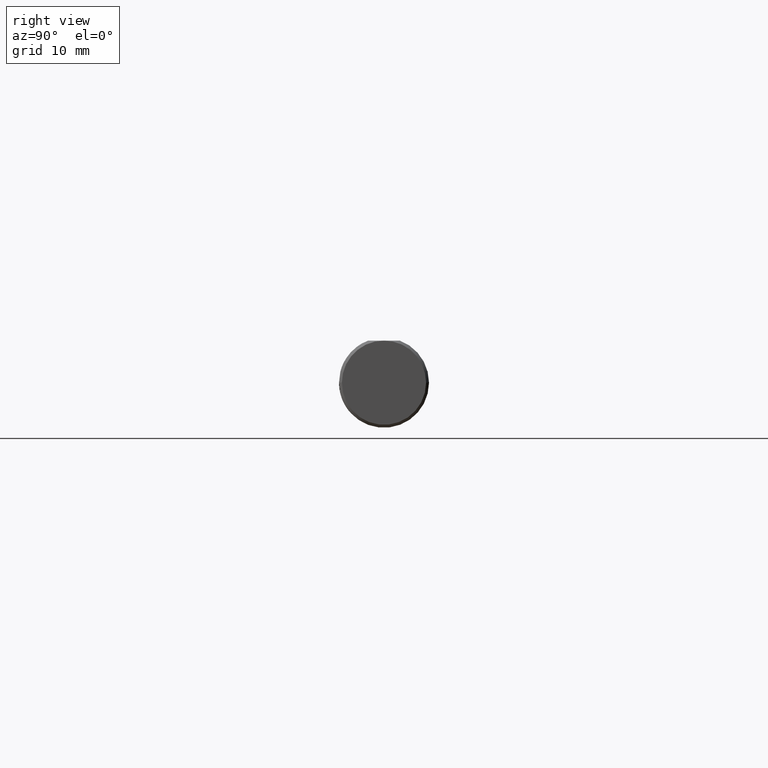
[diagram: clean part render]
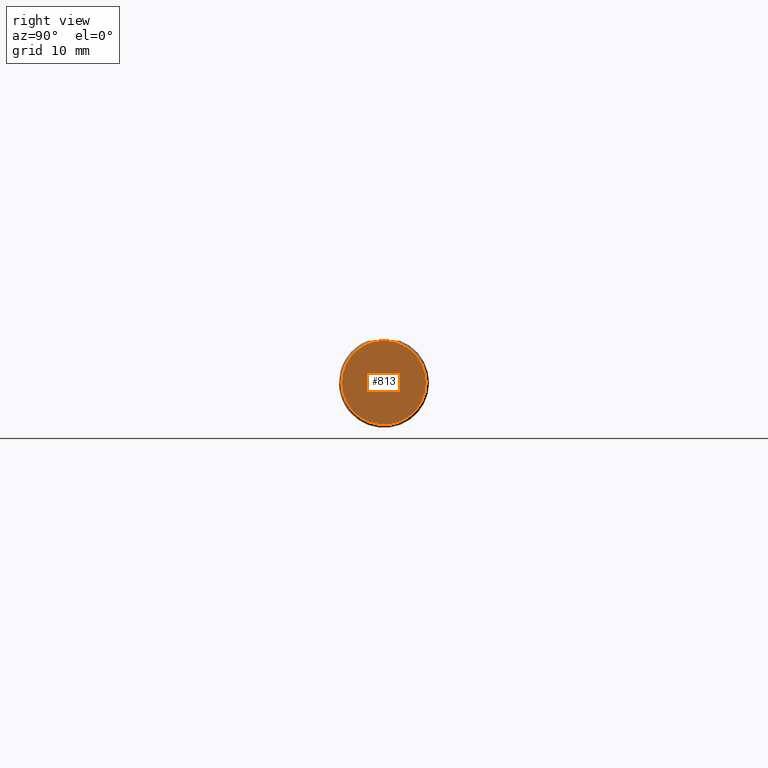
[diagram: same view with one face highlighted and labeled with its STEP entity id]
A machine part, right view. The second image highlights one B-rep face of the part: STEP entity #813.
In plain terms, the highlighted planar face has unit normal (1, 0, -0).
Its self-contained STEP definition (entity closure, byte-faithful):
#2 = EDGE_CURVE ( 'NONE', #558, #822, #131, .T. ) ;
#24 = DIRECTION ( 'NONE',  ( 1.000000000000000000, 1.224646799147352961E-16, -0.000000000000000000 ) ) ;
#40 = EDGE_CURVE ( 'NONE', #822, #563, #235, .T. ) ;
#54 = EDGE_CURVE ( 'NONE', #563, #558, #116, .T. ) ;
#91 = DIRECTION ( 'NONE',  ( 1.000000000000000000, 1.224646799147352961E-16, -0.000000000000000000 ) ) ;
#116 = CIRCLE ( 'NONE', #470, 0.1461000000000006183 ) ;
#131 = CIRCLE ( 'NONE', #442, 0.1461000000000006183 ) ;
#154 = DIRECTION ( 'NONE',  ( -1.224646799147352961E-16, 1.000000000000000000, 0.000000000000000000 ) ) ;
#166 = CARTESIAN_POINT ( 'NONE',  ( 2.745045800288798215E-17, -0.1461000000000003685, 0.000000000000000000 ) ) ;
#167 = DIRECTION ( 'NONE',  ( 1.000000000000000000, 1.224646799147352961E-16, -0.000000000000000000 ) ) ;
#235 = CIRCLE ( 'NONE', #349, 0.1461000000000006183 ) ;
#239 = ORIENTED_EDGE ( 'NONE', *, *, #2, .T. ) ;
#282 = CARTESIAN_POINT ( 'NONE',  ( 9.558368267345076472E-18, 2.449293598294705921E-16, 0.000000000000000000 ) ) ;
#319 = CARTESIAN_POINT ( 'NONE',  ( 9.558368267345107287E-18, 1.170562510367581579E-33, 0.000000000000000000 ) ) ;
#349 = AXIS2_PLACEMENT_3D ( 'NONE', #709, #24, #154 ) ;
#365 = DIRECTION ( 'NONE',  ( -1.224646799147352961E-16, 1.000000000000000000, 0.000000000000000000 ) ) ;
#370 = CARTESIAN_POINT ( 'NONE',  ( -3.241309669837331952E-33, 2.086455426436077518E-16, 0.1461000000000000354 ) ) ;
#372 = AXIS2_PLACEMENT_3D ( 'NONE', #319, #723, #666 ) ;
#442 = AXIS2_PLACEMENT_3D ( 'NONE', #282, #167, #365 ) ;
#446 = CARTESIAN_POINT ( 'NONE',  ( -8.333721468197827666E-18, 0.1461000000000008403, 1.850441313511654549E-17 ) ) ;
#470 = AXIS2_PLACEMENT_3D ( 'NONE', #705, #91, #636 ) ;
#558 = VERTEX_POINT ( 'NONE', #166 ) ;
#563 = VERTEX_POINT ( 'NONE', #370 ) ;
#586 = ORIENTED_EDGE ( 'NONE', *, *, #40, .T. ) ;
#621 = ORIENTED_EDGE ( 'NONE', *, *, #54, .T. ) ;
#636 = DIRECTION ( 'NONE',  ( -1.224646799147352961E-16, 1.000000000000000000, 0.000000000000000000 ) ) ;
#666 = DIRECTION ( 'NONE',  ( -1.224646799147352961E-16, 1.000000000000000000, 0.000000000000000000 ) ) ;
#705 = CARTESIAN_POINT ( 'NONE',  ( 9.558368267345076472E-18, 2.449293598294705921E-16, 0.000000000000000000 ) ) ;
#709 = CARTESIAN_POINT ( 'NONE',  ( 9.558368267345076472E-18, 2.449293598294705921E-16, 0.000000000000000000 ) ) ;
#723 = DIRECTION ( 'NONE',  ( 1.000000000000000000, 1.224646799147352961E-16, -0.000000000000000000 ) ) ;
#734 = PLANE ( 'NONE',  #372 ) ;
#746 = EDGE_LOOP ( 'NONE', ( #621, #239, #586 ) ) ;
#797 = FACE_OUTER_BOUND ( 'NONE', #746, .T. ) ;
#813 = ADVANCED_FACE ( 'NONE', ( #797 ), #734, .T. ) ;
#822 = VERTEX_POINT ( 'NONE', #446 ) ;